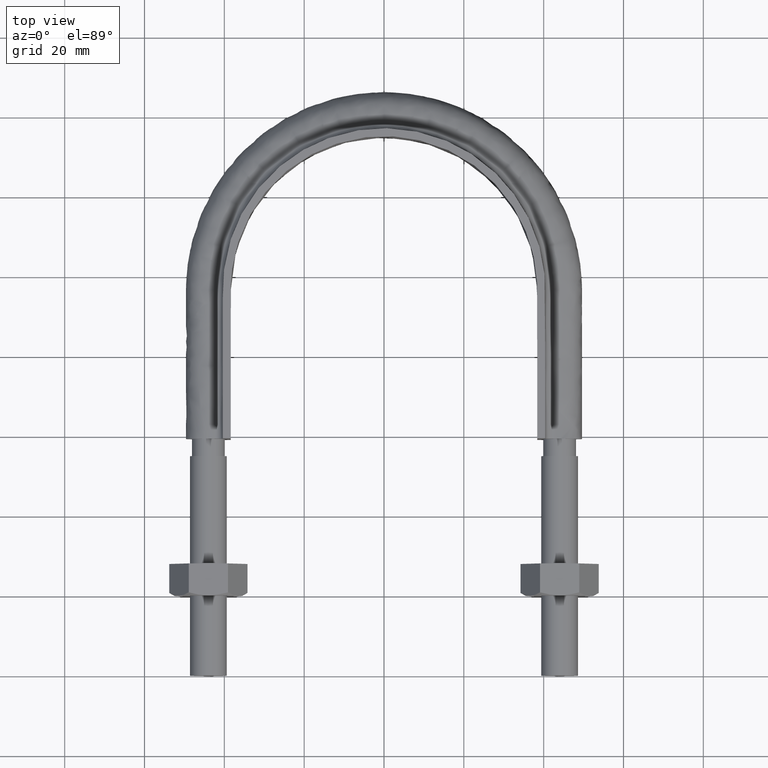
[diagram: clean part render]
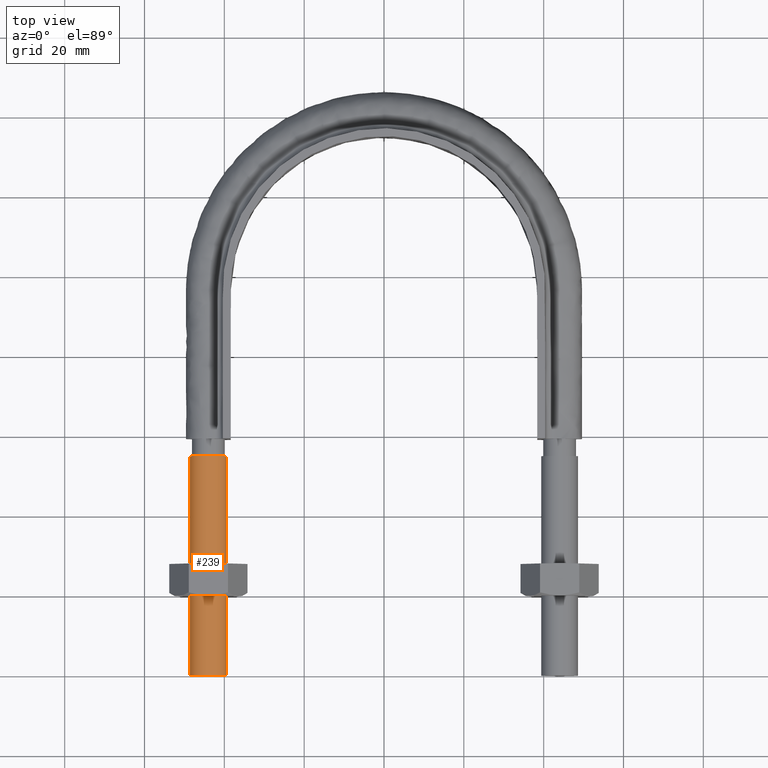
[diagram: same view with one face highlighted and labeled with its STEP entity id]
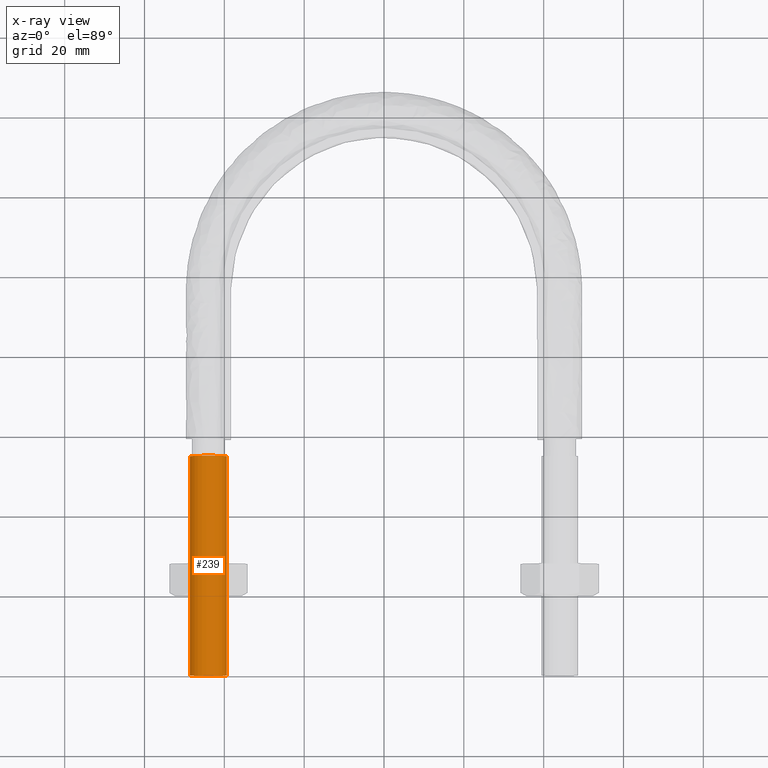
[diagram: x-ray of the same camera — body ghosted, the highlighted face saturated]
A machine part, top view. The second image highlights one B-rep face of the part: STEP entity #239.
The next image is the same camera in x-ray: the body ghosted, the highlighted face saturated — about 0% of this face is hidden behind the body in this view.
In plain terms, the highlighted cylindrical surface (bore or boss wall) has radius 4.6 mm, axis along (-0, -1, -0).
Its self-contained STEP definition (entity closure, byte-faithful):
#239 = ADVANCED_FACE( '', ( #339, #340 ), #341, .T. );
#339 = FACE_OUTER_BOUND( '', #1182, .T. );
#340 = FACE_OUTER_BOUND( '', #1183, .T. );
#341 = CYLINDRICAL_SURFACE( '', #1184, 4.60000000000000 );
#1182 = EDGE_LOOP( '', ( #1449 ) );
#1183 = EDGE_LOOP( '', ( #1450 ) );
#1184 = AXIS2_PLACEMENT_3D( '', #1451, #1452, #1453 );
#1449 = ORIENTED_EDGE( '', *, *, #1882, .F. );
#1450 = ORIENTED_EDGE( '', *, *, #1860, .T. );
#1451 = CARTESIAN_POINT( '', ( -44.0000000000000, 55.0000000000000, 3.42889779070266E-015 ) );
#1452 = DIRECTION( '', ( -2.44921270764475E-016, -1.00000000000000, -6.12303176911189E-017 ) );
#1453 = DIRECTION( '', ( 1.00000000000000, -2.44921270764475E-016, -7.49830360911069E-033 ) );
#1860 = EDGE_CURVE( '', #2026, #2026, #2027, .T. );
#1882 = EDGE_CURVE( '', #2057, #2057, #2058, .T. );
#2026 = VERTEX_POINT( '', #2474 );
#2027 = CIRCLE( '', #2475, 4.60000000000000 );
#2057 = VERTEX_POINT( '', #2544 );
#2058 = CIRCLE( '', #2545, 4.60000000000000 );
#2474 = CARTESIAN_POINT( '', ( -39.4000000000000, 55.0000000000000, 3.42889779070266E-015 ) );
#2475 = AXIS2_PLACEMENT_3D( '', #2908, #2909, #2910 );
#2544 = CARTESIAN_POINT( '', ( -39.4000000000000, 9.64989806812033E-015, 6.12303176911191E-017 ) );
#2545 = AXIS2_PLACEMENT_3D( '', #2935, #2936, #2937 );
#2908 = CARTESIAN_POINT( '', ( -44.0000000000000, 55.0000000000000, 3.42889779070266E-015 ) );
#2909 = DIRECTION( '', ( -2.44921270764476E-016, -1.00000000000000, -6.12303176911189E-017 ) );
#2910 = DIRECTION( '', ( 1.00000000000000, -2.44921270764476E-016, -1.01150562509412E-032 ) );
#2935 = CARTESIAN_POINT( '', ( -44.0000000000000, 1.07765359136369E-014, 6.12303176911192E-017 ) );
#2936 = DIRECTION( '', ( -2.44921270764476E-016, -1.00000000000000, -6.12303176911189E-017 ) );
#2937 = DIRECTION( '', ( 1.00000000000000, -2.44921270764476E-016, -1.01150562509412E-032 ) );